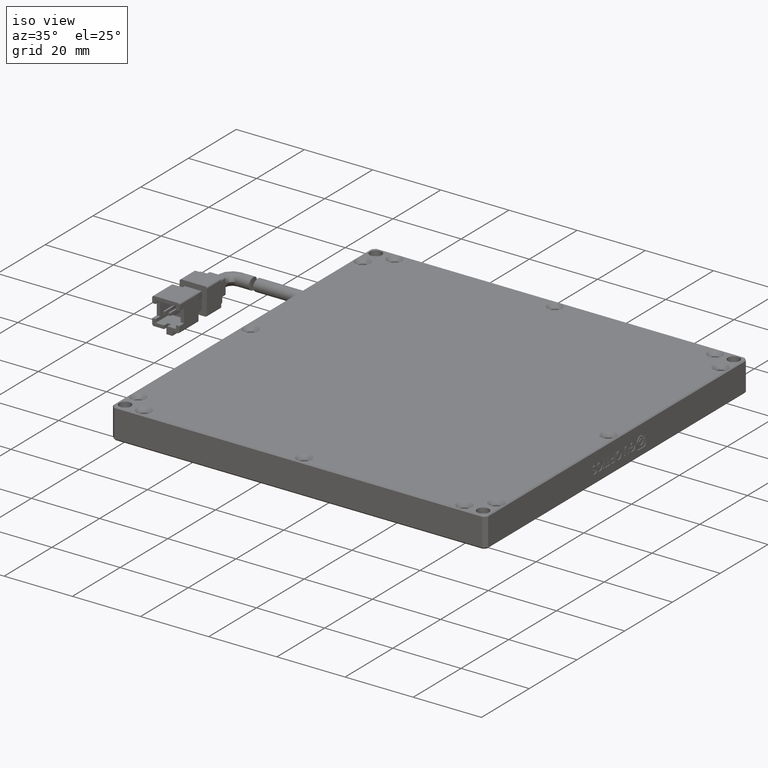
[diagram: clean part render]
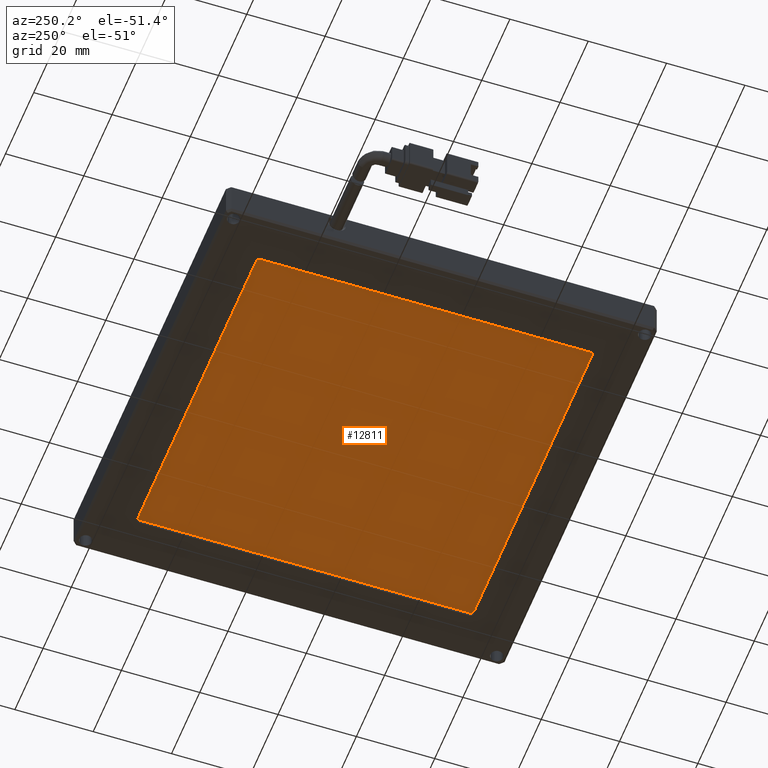
[diagram: tour spotlight — one face highlighted and labeled with its STEP entity id]
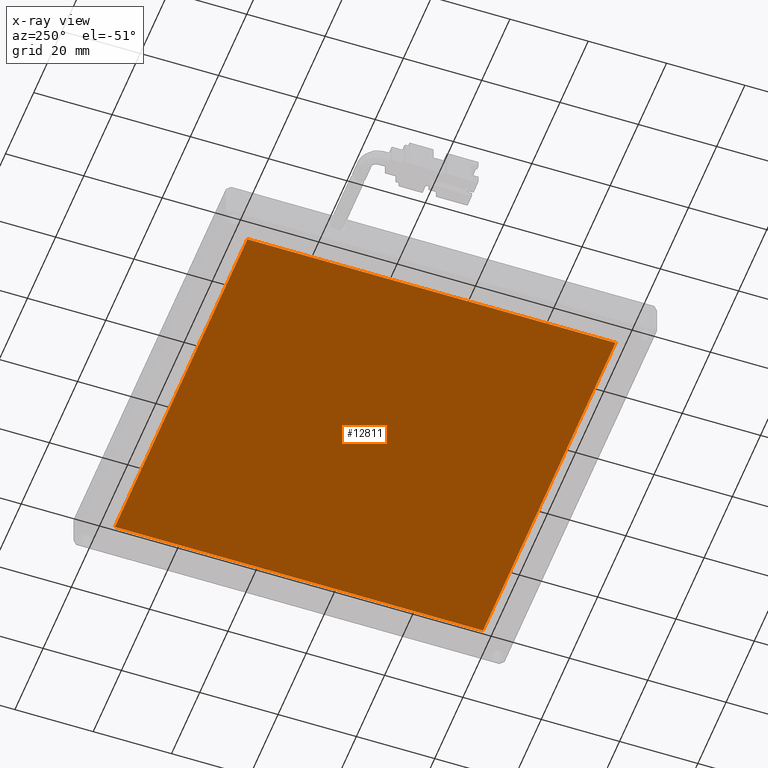
[diagram: x-ray of the same camera — body ghosted, this tour face saturated]
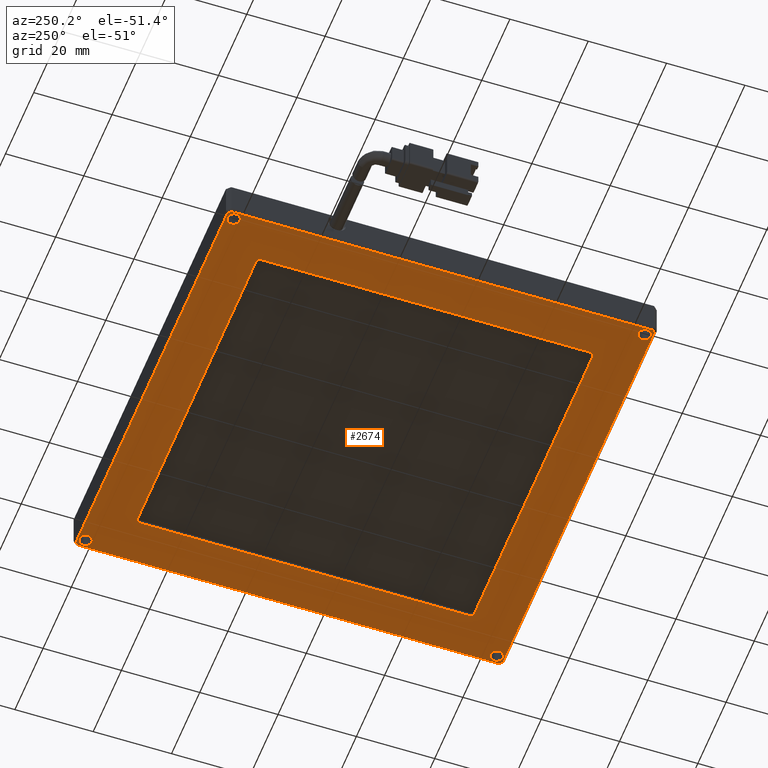
[diagram: tour spotlight — one face highlighted and labeled with its STEP entity id]
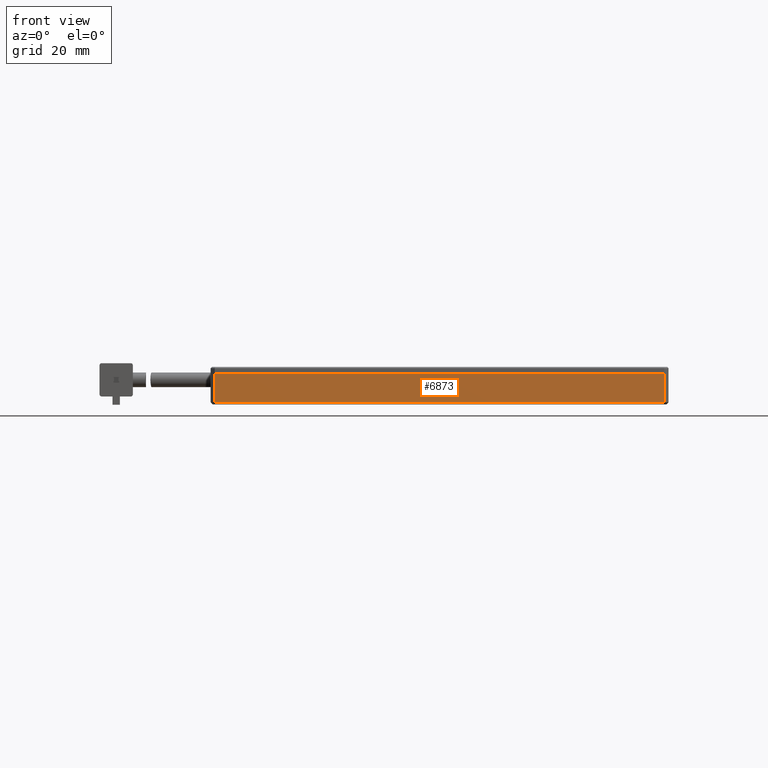
[diagram: tour spotlight — one face highlighted and labeled with its STEP entity id]
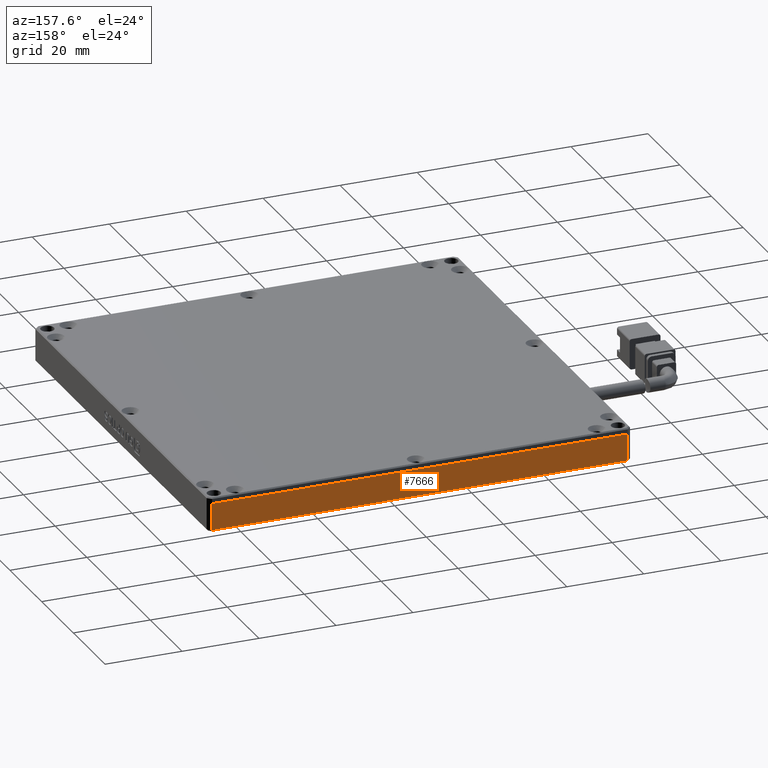
[diagram: tour spotlight — one face highlighted and labeled with its STEP entity id]
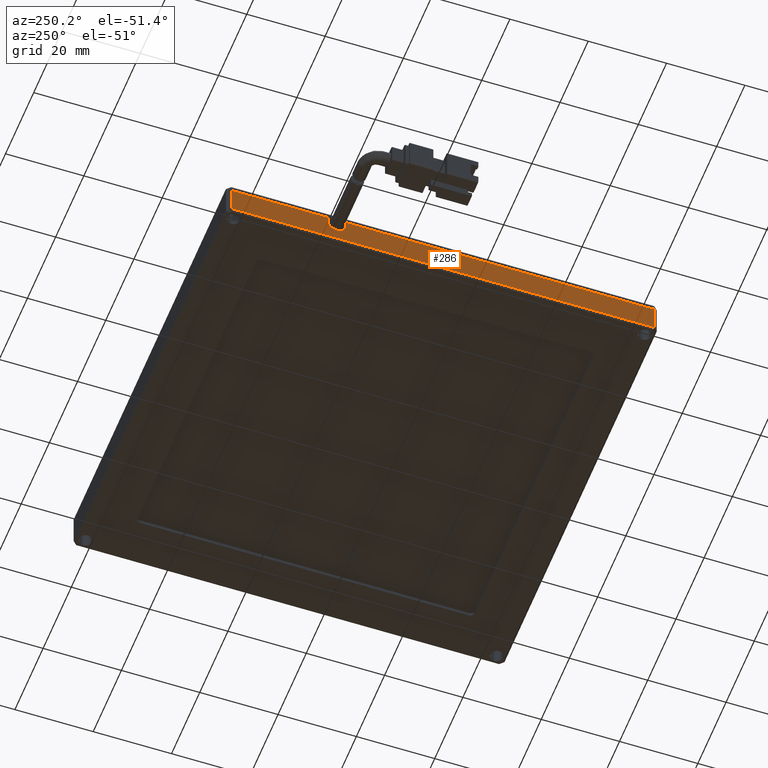
[diagram: tour spotlight — one face highlighted and labeled with its STEP entity id]
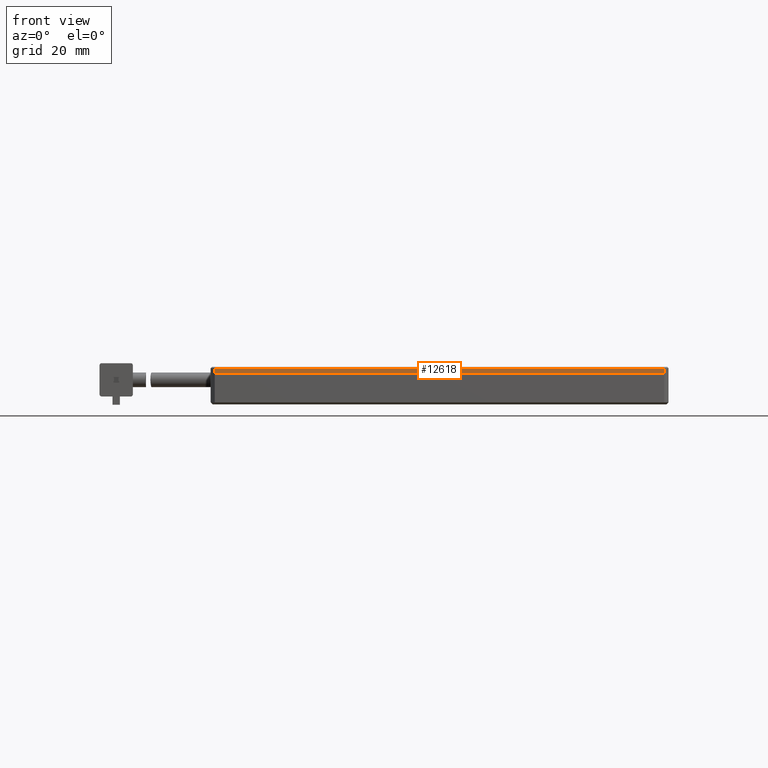
[diagram: tour spotlight — one face highlighted and labeled with its STEP entity id]
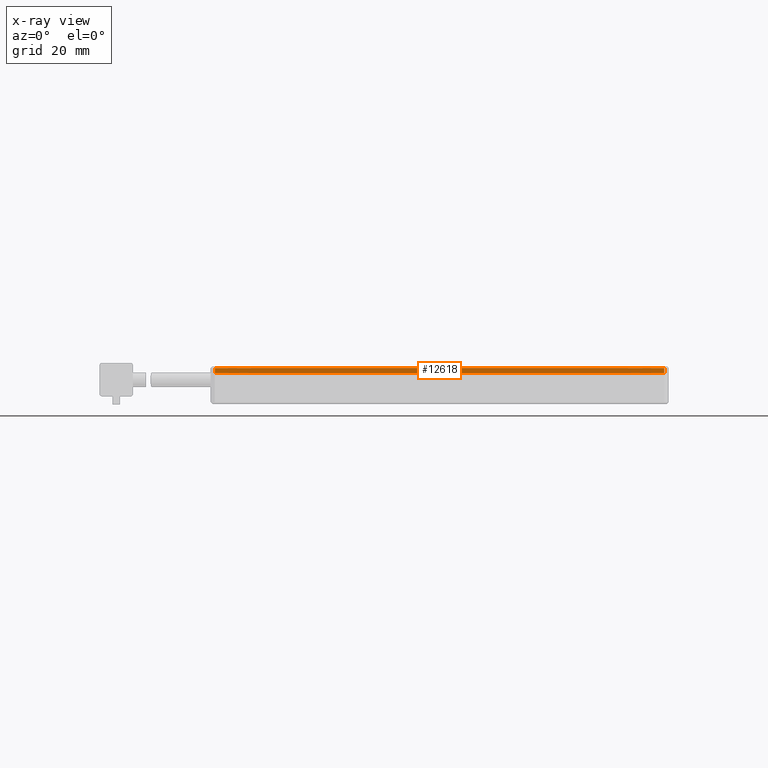
[diagram: x-ray of the same camera — body ghosted, this tour face saturated]
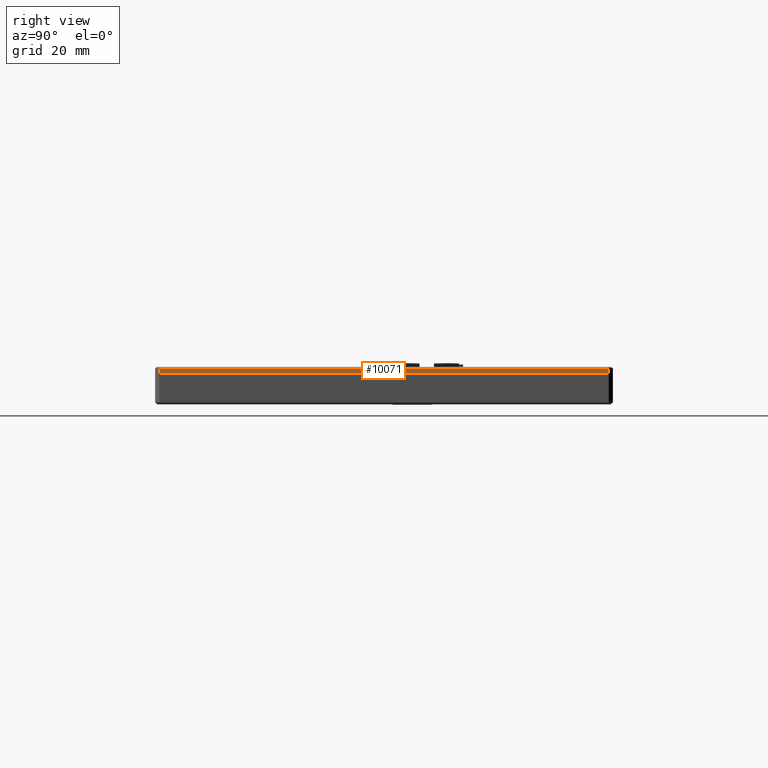
[diagram: tour spotlight — one face highlighted and labeled with its STEP entity id]
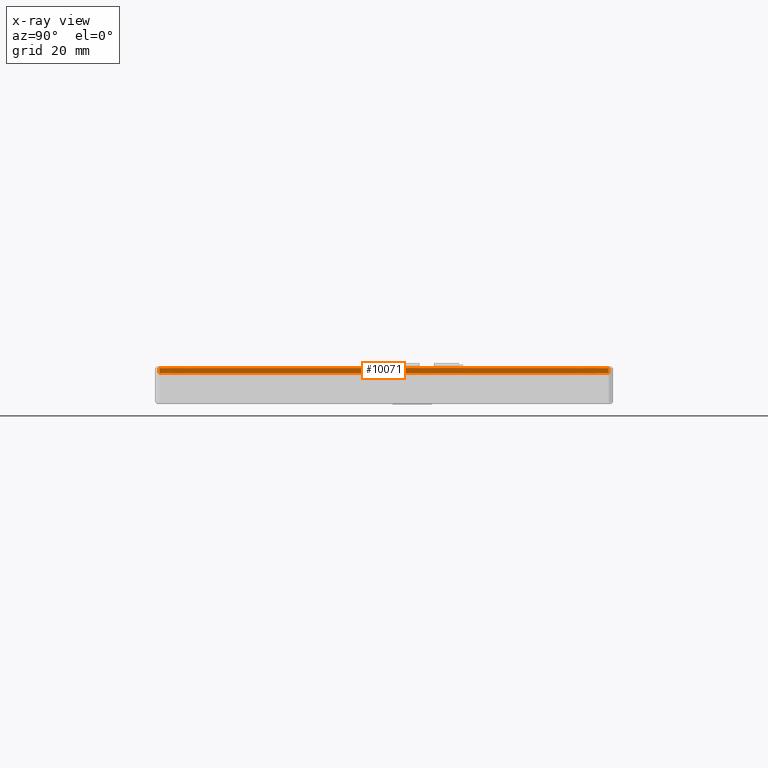
[diagram: x-ray of the same camera — body ghosted, this tour face saturated]
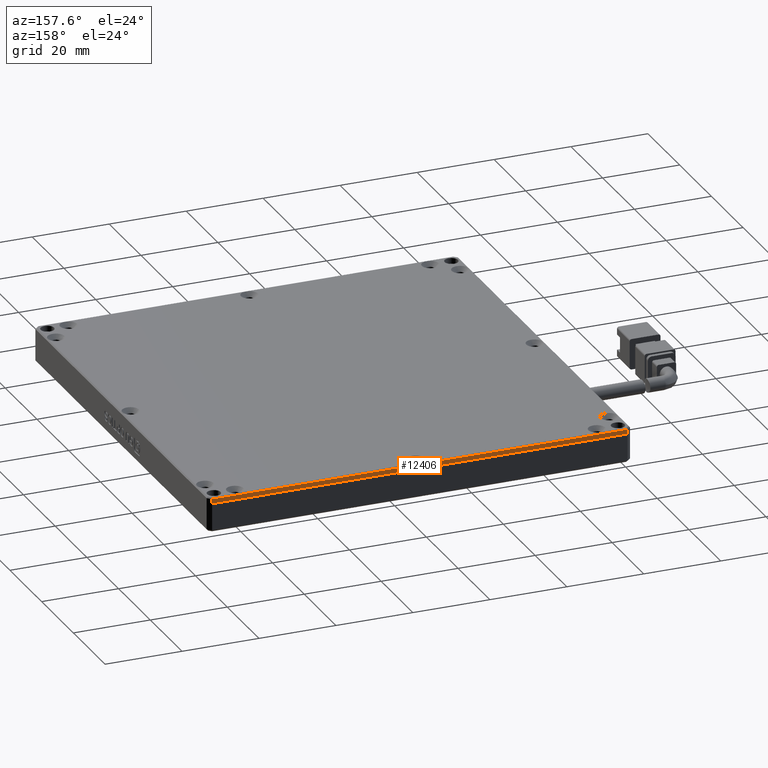
[diagram: tour spotlight — one face highlighted and labeled with its STEP entity id]
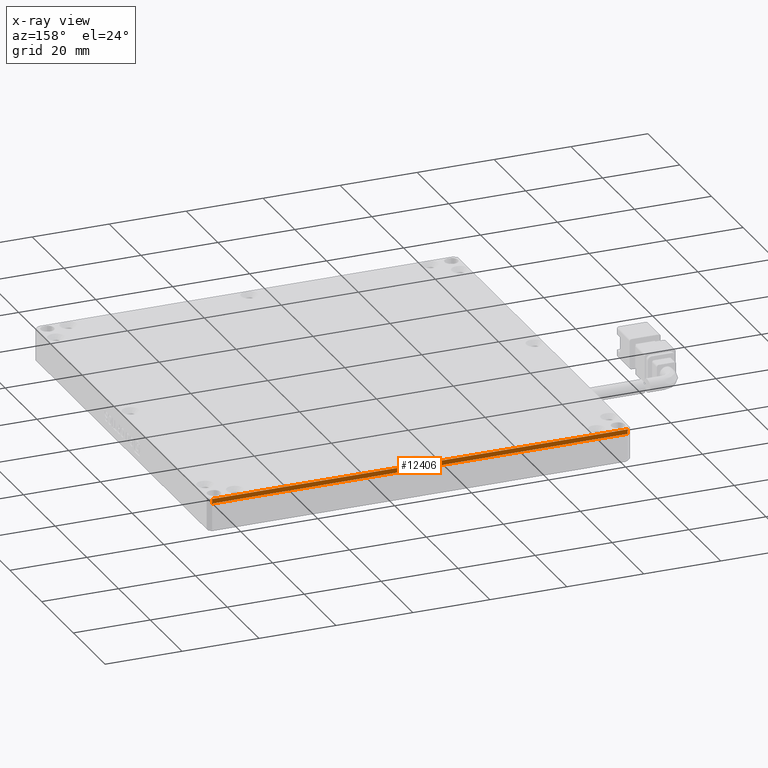
[diagram: x-ray of the same camera — body ghosted, this tour face saturated]
A machine part: a face-by-face anatomy tour. The part has 415 B-rep faces; the first image is the clean iso view, then the 8 largest visible faces are spotlighted one at a time (largest first), each with its STEP entity span.

Face 1 — auxiliary view, entity #12811. An x-ray twin of the same camera follows (body ghosted, this face saturated) — the face is partly hidden behind the body. In plain terms, the highlighted planar face has unit normal (0, 0, -1).
Definition (entity closure, byte-faithful):
#11 = ORIENTED_EDGE ( 'NONE', *, *, #4930, .T. ) ;
#364 = LINE ( 'NONE', #5172, #10865 ) ;
#570 = EDGE_CURVE ( 'NONE', #2853, #6898, #4342, .T. ) ;
#688 = ORIENTED_EDGE ( 'NONE', *, *, #15110, .T. ) ;
#860 = EDGE_LOOP ( 'NONE', ( #688, #10959, #11, #8814 ) ) ;
#1325 = DIRECTION ( 'NONE',  ( -0.0000000000000000000, -1.000000000000000000, -0.0000000000000000000 ) ) ;
#2226 = CARTESIAN_POINT ( 'NONE',  ( 41.85490645284001200, 55.40015273004998900, -6.500000000024000400 ) ) ;
#2301 = LINE ( 'NONE', #8918, #7849 ) ;
#2853 = VERTEX_POINT ( 'NONE', #6800 ) ;
#3536 = CARTESIAN_POINT ( 'NONE',  ( -52.14509354716000200, -38.59984726994999000, -6.500000000024000400 ) ) ;
#3910 = VECTOR ( 'NONE', #1325, 1000.000000000000000 ) ;
#4342 = LINE ( 'NONE', #9376, #14469 ) ;
#4930 = EDGE_CURVE ( 'NONE', #6898, #12902, #364, .T. ) ;
#5172 = CARTESIAN_POINT ( 'NONE',  ( -52.14509354715999500, 8.400152730050004700, -6.500000000024000400 ) ) ;
#6077 = DIRECTION ( 'NONE',  ( 0.0000000000000000000, 0.0000000000000000000, -1.000000000000000000 ) ) ;
#6800 = CARTESIAN_POINT ( 'NONE',  ( 41.85490645284000500, -38.59984726994998300, -6.500000000024000400 ) ) ;
#6898 = VERTEX_POINT ( 'NONE', #3536 ) ;
#7472 = DIRECTION ( 'NONE',  ( 1.000000000000000000, 0.0000000000000000000, 0.0000000000000000000 ) ) ;
#7517 = LINE ( 'NONE', #17869, #3910 ) ;
#7670 = CARTESIAN_POINT ( 'NONE',  ( -52.14509354716000900, 55.40015273004998900, -6.500000000024000400 ) ) ;
#7849 = VECTOR ( 'NONE', #7472, 1000.000000000000000 ) ;
#7905 = FACE_OUTER_BOUND ( 'NONE', #860, .T. ) ;
#8814 = ORIENTED_EDGE ( 'NONE', *, *, #13443, .T. ) ;
#8918 = CARTESIAN_POINT ( 'NONE',  ( -5.145093547160001000, 55.40015273004998200, -6.500000000024000400 ) ) ;
#9376 = CARTESIAN_POINT ( 'NONE',  ( -5.145093547160001000, -38.59984726994997600, -6.500000000024001200 ) ) ;
#10865 = VECTOR ( 'NONE', #13366, 1000.000000000000000 ) ;
#10959 = ORIENTED_EDGE ( 'NONE', *, *, #570, .T. ) ;
#11565 = VERTEX_POINT ( 'NONE', #2226 ) ;
#12811 = ADVANCED_FACE ( 'NONE', ( #7905 ), #12835, .T. ) ;
#12835 = PLANE ( 'NONE',  #17630 ) ;
#12902 = VERTEX_POINT ( 'NONE', #7670 ) ;
#13366 = DIRECTION ( 'NONE',  ( 0.0000000000000000000, 1.000000000000000000, 0.0000000000000000000 ) ) ;
#13443 = EDGE_CURVE ( 'NONE', #12902, #11565, #2301, .T. ) ;
#13829 = DIRECTION ( 'NONE',  ( -1.000000000000000000, 0.0000000000000000000, 0.0000000000000000000 ) ) ;
#14359 = CARTESIAN_POINT ( 'NONE',  ( 43.73490645284000800, -40.47984726994997800, -6.500000000024000400 ) ) ;
#14469 = VECTOR ( 'NONE', #13829, 1000.000000000000000 ) ;
#15110 = EDGE_CURVE ( 'NONE', #11565, #2853, #7517, .T. ) ;
#15775 = DIRECTION ( 'NONE',  ( -1.000000000000000000, 0.0000000000000000000, 0.0000000000000000000 ) ) ;
#17630 = AXIS2_PLACEMENT_3D ( 'NONE', #14359, #6077, #15775 ) ;
#17869 = CARTESIAN_POINT ( 'NONE',  ( 41.85490645283999800, 8.400152730050004700, -6.500000000024000400 ) ) ;

Face 2 — auxiliary view, entity #2674. In plain terms, the highlighted planar face has unit normal (0, 0, -1).
Definition (entity closure, byte-faithful):
#52 = AXIS2_PLACEMENT_3D ( 'NONE', #15049, #16231, #6558 ) ;
#247 = DIRECTION ( 'NONE',  ( -0.0000000000000000000, -0.0000000000000000000, -1.000000000000000000 ) ) ;
#267 = AXIS2_PLACEMENT_3D ( 'NONE', #8009, #17756, #9381 ) ;
#300 = DIRECTION ( 'NONE',  ( 0.7071067811865405800, 0.7071067811865544600, 0.0000000000000000000 ) ) ;
#627 = FACE_BOUND ( 'NONE', #4553, .T. ) ;
#639 = LINE ( 'NONE', #6534, #7898 ) ;
#697 = CARTESIAN_POINT ( 'NONE',  ( -58.93798676597328500, -46.09984726994931500, -7.500000000023733000 ) ) ;
#764 = DIRECTION ( 'NONE',  ( -1.000000000000000000, 0.0000000000000000000, 0.0000000000000000000 ) ) ;
#848 = CARTESIAN_POINT ( 'NONE',  ( 45.75490645284001800, 60.90015273004998200, -7.500000000023841400 ) ) ;
#911 = EDGE_CURVE ( 'NONE', #5100, #17538, #6434, .T. ) ;
#929 = ORIENTED_EDGE ( 'NONE', *, *, #4709, .T. ) ;
#957 = CARTESIAN_POINT ( 'NONE',  ( 37.85490645284001200, -33.59984726995010400, -7.500000000023823600 ) ) ;
#1000 = ORIENTED_EDGE ( 'NONE', *, *, #4232, .F. ) ;
#1040 = DIRECTION ( 'NONE',  ( 1.000000000000000000, 0.0000000000000000000, 0.0000000000000000000 ) ) ;
#1133 = EDGE_CURVE ( 'NONE', #10619, #7294, #17193, .T. ) ;
#1227 = VERTEX_POINT ( 'NONE', #848 ) ;
#1261 = LINE ( 'NONE', #7835, #4472 ) ;
#1458 = CARTESIAN_POINT ( 'NONE',  ( -47.14509354715999500, -33.59984726995000400, -7.500000000023782800 ) ) ;
#1485 = EDGE_LOOP ( 'NONE', ( #1988, #13790, #13715, #10527, #4000, #10057, #12462, #929 ) ) ;
#1682 = LINE ( 'NONE', #9803, #15495 ) ;
#1686 = CARTESIAN_POINT ( 'NONE',  ( 48.95490645284000000, 60.90015273004998200, -7.500000000023841400 ) ) ;
#1730 = ORIENTED_EDGE ( 'NONE', *, *, #13216, .F. ) ;
#1988 = ORIENTED_EDGE ( 'NONE', *, *, #911, .T. ) ;
#2014 = VECTOR ( 'NONE', #764, 1000.000000000000000 ) ;
#2030 = EDGE_CURVE ( 'NONE', #7294, #5217, #2202, .T. ) ;
#2202 = LINE ( 'NONE', #15770, #9032 ) ;
#2468 = VERTEX_POINT ( 'NONE', #15519 ) ;
#2499 = ORIENTED_EDGE ( 'NONE', *, *, #1133, .F. ) ;
#2531 = FACE_OUTER_BOUND ( 'NONE', #1485, .T. ) ;
#2544 = VERTEX_POINT ( 'NONE', #17143 ) ;
#2674 = ADVANCED_FACE ( 'NONE', ( #17246, #13529, #627, #4263, #6177, #2531 ), #13288, .T. ) ;
#2677 = EDGE_CURVE ( 'NONE', #17387, #11030, #11785, .T. ) ;
#2680 = EDGE_CURVE ( 'NONE', #9936, #3220, #1261, .T. ) ;
#2696 = AXIS2_PLACEMENT_3D ( 'NONE', #2895, #12511, #4281 ) ;
#2701 = CIRCLE ( 'NONE', #8368, 0.9999999999999870100 ) ;
#2760 = VECTOR ( 'NONE', #14850, 1000.000000000000000 ) ;
#2783 = CARTESIAN_POINT ( 'NONE',  ( 48.64779967164027900, -46.09984726994930800, -7.500000000023733900 ) ) ;
#2826 = DIRECTION ( 'NONE',  ( -1.000000000000000000, 0.0000000000000000000, 0.0000000000000000000 ) ) ;
#2895 = CARTESIAN_POINT ( 'NONE',  ( 47.35490645284001200, -44.09984726994999000, -7.500000000023841400 ) ) ;
#2910 = EDGE_LOOP ( 'NONE', ( #1000, #7886, #4386, #4583, #6382, #15029, #3883, #2499 ) ) ;
#2950 = CIRCLE ( 'NONE', #13745, 1.599999999999990300 ) ;
#3098 = AXIS2_PLACEMENT_3D ( 'NONE', #12746, #4502, #14142 ) ;
#3119 = DIRECTION ( 'NONE',  ( -0.0000000000000000000, 0.0000000000000000000, -1.000000000000000000 ) ) ;
#3220 = VERTEX_POINT ( 'NONE', #7618 ) ;
#3224 = EDGE_LOOP ( 'NONE', ( #3888, #17369 ) ) ;
#3300 = CARTESIAN_POINT ( 'NONE',  ( -48.14509354715998100, -33.59984726994999700, -7.500000000023823600 ) ) ;
#3373 = VECTOR ( 'NONE', #15447, 1000.000000000000000 ) ;
#3383 = CARTESIAN_POINT ( 'NONE',  ( -5.145093547159997400, -46.09984726994996200, -7.500000000023999500 ) ) ;
#3581 = CARTESIAN_POINT ( 'NONE',  ( -59.24509354715998200, -44.09984726994999000, -7.500000000023841400 ) ) ;
#3720 = DIRECTION ( 'NONE',  ( 0.0000000000000000000, 0.0000000000000000000, -1.000000000000000000 ) ) ;
#3847 = CARTESIAN_POINT ( 'NONE',  ( -59.24509354715998200, 60.90015273004998200, -7.500000000023841400 ) ) ;
#3883 = ORIENTED_EDGE ( 'NONE', *, *, #2030, .F. ) ;
#3884 = LINE ( 'NONE', #12793, #10306 ) ;
#3888 = ORIENTED_EDGE ( 'NONE', *, *, #12189, .F. ) ;
#4000 = ORIENTED_EDGE ( 'NONE', *, *, #11943, .T. ) ;
#4036 = CARTESIAN_POINT ( 'NONE',  ( 49.35490645284068700, 62.19304594885579000, -7.500000000024686900 ) ) ;
#4045 = ORIENTED_EDGE ( 'NONE', *, *, #2677, .F. ) ;
#4232 = EDGE_CURVE ( 'NONE', #2544, #10619, #639, .T. ) ;
#4256 = DIRECTION ( 'NONE',  ( -0.0000000000000000000, 0.0000000000000000000, -1.000000000000000000 ) ) ;
#4263 = FACE_BOUND ( 'NONE', #10939, .T. ) ;
#4281 = DIRECTION ( 'NONE',  ( 1.000000000000000000, 0.0000000000000000000, 0.0000000000000000000 ) ) ;
#4386 = ORIENTED_EDGE ( 'NONE', *, *, #7480, .F. ) ;
#4472 = VECTOR ( 'NONE', #14768, 1000.000000000000000 ) ;
#4502 = DIRECTION ( 'NONE',  ( 0.0000000000000000000, 0.0000000000000000000, -1.000000000000000000 ) ) ;
#4553 = EDGE_LOOP ( 'NONE', ( #14742, #8793 ) ) ;
#4583 = ORIENTED_EDGE ( 'NONE', *, *, #10976, .F. ) ;
#4709 = EDGE_CURVE ( 'NONE', #16093, #5100, #17007, .T. ) ;
#4760 = CARTESIAN_POINT ( 'NONE',  ( -56.04509354716000000, -44.09984726994999000, -7.500000000023841400 ) ) ;
#4811 = VERTEX_POINT ( 'NONE', #6300 ) ;
#5100 = VERTEX_POINT ( 'NONE', #8206 ) ;
#5188 = CARTESIAN_POINT ( 'NONE',  ( 49.35490645283999100, -45.39274048874995800, -7.500000000024000400 ) ) ;
#5217 = VERTEX_POINT ( 'NONE', #8721 ) ;
#5381 = DIRECTION ( 'NONE',  ( -0.0000000000000000000, 0.0000000000000000000, -1.000000000000000000 ) ) ;
#5406 = CARTESIAN_POINT ( 'NONE',  ( 36.85490645283999100, -34.59984726994999700, -7.500000000023823600 ) ) ;
#5917 = DIRECTION ( 'NONE',  ( -0.0000000000000000000, -1.000000000000000000, -0.0000000000000000000 ) ) ;
#6012 = VERTEX_POINT ( 'NONE', #4036 ) ;
#6024 = VERTEX_POINT ( 'NONE', #2783 ) ;
#6033 = CARTESIAN_POINT ( 'NONE',  ( 48.64779967163998700, 62.90015273004999600, -7.500000000024000400 ) ) ;
#6088 = DIRECTION ( 'NONE',  ( 0.7071067811930528100, -0.7071067811800423300, 0.0000000000000000000 ) ) ;
#6177 = FACE_BOUND ( 'NONE', #3224, .T. ) ;
#6300 = CARTESIAN_POINT ( 'NONE',  ( -47.14509354715993800, 51.40015273004998200, -7.500000000023823600 ) ) ;
#6382 = ORIENTED_EDGE ( 'NONE', *, *, #2680, .F. ) ;
#6434 = LINE ( 'NONE', #10502, #17512 ) ;
#6534 = CARTESIAN_POINT ( 'NONE',  ( 37.85490645284001200, 8.400152730049997600, -7.500000000023864500 ) ) ;
#6558 = DIRECTION ( 'NONE',  ( -1.000000000000000000, 0.0000000000000000000, 0.0000000000000000000 ) ) ;
#6720 = EDGE_CURVE ( 'NONE', #17677, #2544, #10079, .T. ) ;
#6889 = CARTESIAN_POINT ( 'NONE',  ( -57.64509354715999500, -44.09984726994999000, -7.500000000023841400 ) ) ;
#7101 = CARTESIAN_POINT ( 'NONE',  ( -5.145093547159997400, 51.40015273004998200, -7.500000000023864500 ) ) ;
#7294 = VERTEX_POINT ( 'NONE', #5406 ) ;
#7386 = EDGE_CURVE ( 'NONE', #5217, #9936, #14604, .T. ) ;
#7423 = VERTEX_POINT ( 'NONE', #9698 ) ;
#7480 = EDGE_CURVE ( 'NONE', #4811, #17677, #17657, .T. ) ;
#7492 = DIRECTION ( 'NONE',  ( -1.000000000000000000, -0.0000000000000000000, -0.0000000000000000000 ) ) ;
#7508 = EDGE_CURVE ( 'NONE', #8931, #8220, #2950, .T. ) ;
#7605 = CARTESIAN_POINT ( 'NONE',  ( -47.14509354715999500, 50.40015273004998200, -7.500000000023782800 ) ) ;
#7618 = CARTESIAN_POINT ( 'NONE',  ( -48.14509354715998100, 50.40015273004998200, -7.500000000023823600 ) ) ;
#7835 = CARTESIAN_POINT ( 'NONE',  ( -48.14509354715998100, 8.400152730049997600, -7.500000000023864500 ) ) ;
#7886 = ORIENTED_EDGE ( 'NONE', *, *, #6720, .F. ) ;
#7889 = EDGE_CURVE ( 'NONE', #8220, #8931, #16982, .T. ) ;
#7898 = VECTOR ( 'NONE', #17647, 1000.000000000000000 ) ;
#8009 = CARTESIAN_POINT ( 'NONE',  ( 47.35490645284001200, 60.90015273004998200, -7.500000000023841400 ) ) ;
#8041 = DIRECTION ( 'NONE',  ( 0.0000000000000000000, 1.000000000000000000, 0.0000000000000000000 ) ) ;
#8142 = EDGE_LOOP ( 'NONE', ( #4045, #1730 ) ) ;
#8206 = CARTESIAN_POINT ( 'NONE',  ( -59.64509354715942600, -45.39274048875680000, -7.500000000023437300 ) ) ;
#8220 = VERTEX_POINT ( 'NONE', #10279 ) ;
#8278 = DIRECTION ( 'NONE',  ( 1.000000000000000000, 0.0000000000000000000, 0.0000000000000000000 ) ) ;
#8368 = AXIS2_PLACEMENT_3D ( 'NONE', #7605, #17355, #8989 ) ;
#8414 = CARTESIAN_POINT ( 'NONE',  ( 47.35490645284001200, 60.90015273004998200, -7.500000000023841400 ) ) ;
#8721 = CARTESIAN_POINT ( 'NONE',  ( -47.14509354716015100, -34.59984726994999700, -7.500000000023823600 ) ) ;
#8734 = CIRCLE ( 'NONE', #9774, 1.599999999999990300 ) ;
#8778 = VERTEX_POINT ( 'NONE', #17279 ) ;
#8793 = ORIENTED_EDGE ( 'NONE', *, *, #15792, .F. ) ;
#8813 = CARTESIAN_POINT ( 'NONE',  ( -58.93798676597300800, -46.09984726994996900, -7.500000000024000400 ) ) ;
#8893 = CARTESIAN_POINT ( 'NONE',  ( -5.145093547159997400, 62.90015273004998200, -7.500000000023999500 ) ) ;
#8931 = VERTEX_POINT ( 'NONE', #3847 ) ;
#8989 = DIRECTION ( 'NONE',  ( -1.000000000000000000, 0.0000000000000000000, 0.0000000000000000000 ) ) ;
#9032 = VECTOR ( 'NONE', #7492, 1000.000000000000000 ) ;
#9204 = DIRECTION ( 'NONE',  ( -0.0000000000000000000, -0.0000000000000000000, -1.000000000000000000 ) ) ;
#9270 = AXIS2_PLACEMENT_3D ( 'NONE', #17568, #9204, #1040 ) ;
#9381 = DIRECTION ( 'NONE',  ( 1.000000000000000000, 0.0000000000000000000, 0.0000000000000000000 ) ) ;
#9584 = VECTOR ( 'NONE', #10198, 1000.000000000000100 ) ;
#9607 = LINE ( 'NONE', #5188, #2760 ) ;
#9698 = CARTESIAN_POINT ( 'NONE',  ( -58.93798676597329900, 62.90015273004932800, -7.500000000023732100 ) ) ;
#9774 = AXIS2_PLACEMENT_3D ( 'NONE', #6889, #16638, #8278 ) ;
#9803 = CARTESIAN_POINT ( 'NONE',  ( -59.64509354715999500, 62.19304594886298800, -7.500000000024000400 ) ) ;
#9811 = DIRECTION ( 'NONE',  ( 1.000000000000000000, 0.0000000000000000000, 0.0000000000000000000 ) ) ;
#9835 = CARTESIAN_POINT ( 'NONE',  ( -59.64509354715941900, 62.19304594885682700, -7.500000000023438100 ) ) ;
#9936 = VERTEX_POINT ( 'NONE', #3300 ) ;
#10057 = ORIENTED_EDGE ( 'NONE', *, *, #13013, .T. ) ;
#10079 = CIRCLE ( 'NONE', #3098, 1.000000000000000900 ) ;
#10190 = VECTOR ( 'NONE', #11705, 1000.000000000000000 ) ;
#10198 = DIRECTION ( 'NONE',  ( -0.7071067811800353400, 0.7071067811930597000, 0.0000000000000000000 ) ) ;
#10205 = AXIS2_PLACEMENT_3D ( 'NONE', #11956, #3720, #13356 ) ;
#10279 = CARTESIAN_POINT ( 'NONE',  ( -56.04509354716000000, 60.90015273004998200, -7.500000000023841400 ) ) ;
#10306 = VECTOR ( 'NONE', #5917, 1000.000000000000000 ) ;
#10409 = EDGE_CURVE ( 'NONE', #17538, #7423, #1682, .T. ) ;
#10502 = CARTESIAN_POINT ( 'NONE',  ( -59.64509354715998100, 8.400152730050011800, -7.500000000023999500 ) ) ;
#10527 = ORIENTED_EDGE ( 'NONE', *, *, #12050, .T. ) ;
#10619 = VERTEX_POINT ( 'NONE', #957 ) ;
#10939 = EDGE_LOOP ( 'NONE', ( #15988, #14022 ) ) ;
#10976 = EDGE_CURVE ( 'NONE', #3220, #4811, #2701, .T. ) ;
#11029 = DIRECTION ( 'NONE',  ( 0.0000000000000000000, 0.0000000000000000000, -1.000000000000000000 ) ) ;
#11030 = VERTEX_POINT ( 'NONE', #16092 ) ;
#11337 = CARTESIAN_POINT ( 'NONE',  ( -57.64509354715999500, 60.90015273004998200, -7.500000000023841400 ) ) ;
#11688 = EDGE_CURVE ( 'NONE', #1227, #12230, #15633, .T. ) ;
#11705 = DIRECTION ( 'NONE',  ( 1.000000000000000000, -0.0000000000000000000, -0.0000000000000000000 ) ) ;
#11785 = CIRCLE ( 'NONE', #9270, 1.599999999999990300 ) ;
#11835 = LINE ( 'NONE', #6033, #15556 ) ;
#11943 = EDGE_CURVE ( 'NONE', #6012, #8778, #3884, .T. ) ;
#11956 = CARTESIAN_POINT ( 'NONE',  ( 51.53490645284000500, -48.27984726994998300, -7.500000000024000400 ) ) ;
#12050 = EDGE_CURVE ( 'NONE', #2468, #6012, #11835, .T. ) ;
#12161 = EDGE_CURVE ( 'NONE', #16047, #15561, #16206, .T. ) ;
#12189 = EDGE_CURVE ( 'NONE', #12230, #1227, #15750, .T. ) ;
#12230 = VERTEX_POINT ( 'NONE', #1686 ) ;
#12339 = CARTESIAN_POINT ( 'NONE',  ( 48.95490645284000000, -44.09984726994999000, -7.500000000023841400 ) ) ;
#12461 = AXIS2_PLACEMENT_3D ( 'NONE', #12485, #4256, #13891 ) ;
#12462 = ORIENTED_EDGE ( 'NONE', *, *, #14709, .T. ) ;
#12485 = CARTESIAN_POINT ( 'NONE',  ( -57.64509354715999500, -44.09984726994999000, -7.500000000023841400 ) ) ;
#12511 = DIRECTION ( 'NONE',  ( -0.0000000000000000000, -0.0000000000000000000, -1.000000000000000000 ) ) ;
#12746 = CARTESIAN_POINT ( 'NONE',  ( 36.85490645283999800, 50.40015273004998200, -7.500000000023782800 ) ) ;
#12748 = DIRECTION ( 'NONE',  ( 1.000000000000000000, 0.0000000000000000000, 0.0000000000000000000 ) ) ;
#12793 = CARTESIAN_POINT ( 'NONE',  ( 49.35490645283999100, 8.400152730050011800, -7.500000000023999500 ) ) ;
#13013 = EDGE_CURVE ( 'NONE', #8778, #6024, #9607, .T. ) ;
#13216 = EDGE_CURVE ( 'NONE', #11030, #17387, #15704, .T. ) ;
#13288 = PLANE ( 'NONE',  #10205 ) ;
#13356 = DIRECTION ( 'NONE',  ( -1.000000000000000000, 0.0000000000000000000, 0.0000000000000000000 ) ) ;
#13403 = AXIS2_PLACEMENT_3D ( 'NONE', #8414, #247, #9811 ) ;
#13529 = FACE_BOUND ( 'NONE', #8142, .T. ) ;
#13651 = CARTESIAN_POINT ( 'NONE',  ( -57.64509354715999500, 60.90015273004998200, -7.500000000023841400 ) ) ;
#13715 = ORIENTED_EDGE ( 'NONE', *, *, #14056, .T. ) ;
#13745 = AXIS2_PLACEMENT_3D ( 'NONE', #11337, #3119, #12748 ) ;
#13790 = ORIENTED_EDGE ( 'NONE', *, *, #10409, .T. ) ;
#13891 = DIRECTION ( 'NONE',  ( 1.000000000000000000, 0.0000000000000000000, 0.0000000000000000000 ) ) ;
#14022 = ORIENTED_EDGE ( 'NONE', *, *, #7508, .F. ) ;
#14056 = EDGE_CURVE ( 'NONE', #7423, #2468, #17175, .T. ) ;
#14142 = DIRECTION ( 'NONE',  ( -1.000000000000000000, 0.0000000000000000000, 0.0000000000000000000 ) ) ;
#14461 = CARTESIAN_POINT ( 'NONE',  ( 36.85490645284004800, 51.40015273004998200, -7.500000000023823600 ) ) ;
#14604 = CIRCLE ( 'NONE', #17831, 0.9999999999999870100 ) ;
#14709 = EDGE_CURVE ( 'NONE', #6024, #16093, #16282, .T. ) ;
#14742 = ORIENTED_EDGE ( 'NONE', *, *, #12161, .F. ) ;
#14768 = DIRECTION ( 'NONE',  ( 0.0000000000000000000, 1.000000000000000000, 0.0000000000000000000 ) ) ;
#14850 = DIRECTION ( 'NONE',  ( -0.7071067811865441300, -0.7071067811865510100, 0.0000000000000000000 ) ) ;
#15029 = ORIENTED_EDGE ( 'NONE', *, *, #7386, .F. ) ;
#15049 = CARTESIAN_POINT ( 'NONE',  ( 36.85490645283999800, -33.59984726995000400, -7.500000000023782800 ) ) ;
#15054 = DIRECTION ( 'NONE',  ( 1.000000000000000000, 0.0000000000000000000, 0.0000000000000000000 ) ) ;
#15447 = DIRECTION ( 'NONE',  ( 1.000000000000000000, 0.0000000000000000000, 0.0000000000000000000 ) ) ;
#15495 = VECTOR ( 'NONE', #300, 1000.000000000000000 ) ;
#15519 = CARTESIAN_POINT ( 'NONE',  ( 48.64779967164026400, 62.90015273004934200, -7.500000000023728600 ) ) ;
#15556 = VECTOR ( 'NONE', #6088, 999.9999999999998900 ) ;
#15561 = VERTEX_POINT ( 'NONE', #3581 ) ;
#15633 = CIRCLE ( 'NONE', #267, 1.599999999999990300 ) ;
#15704 = CIRCLE ( 'NONE', #2696, 1.599999999999990300 ) ;
#15750 = CIRCLE ( 'NONE', #13403, 1.599999999999990300 ) ;
#15770 = CARTESIAN_POINT ( 'NONE',  ( -5.145093547159997400, -34.59984726994999700, -7.500000000023864500 ) ) ;
#15792 = EDGE_CURVE ( 'NONE', #15561, #16047, #8734, .T. ) ;
#15988 = ORIENTED_EDGE ( 'NONE', *, *, #7889, .F. ) ;
#16047 = VERTEX_POINT ( 'NONE', #4760 ) ;
#16092 = CARTESIAN_POINT ( 'NONE',  ( 45.75490645284001800, -44.09984726994999000, -7.500000000023841400 ) ) ;
#16093 = VERTEX_POINT ( 'NONE', #697 ) ;
#16206 = CIRCLE ( 'NONE', #12461, 1.599999999999990300 ) ;
#16231 = DIRECTION ( 'NONE',  ( 0.0000000000000000000, 0.0000000000000000000, -1.000000000000000000 ) ) ;
#16282 = LINE ( 'NONE', #3383, #2014 ) ;
#16638 = DIRECTION ( 'NONE',  ( -0.0000000000000000000, 0.0000000000000000000, -1.000000000000000000 ) ) ;
#16982 = CIRCLE ( 'NONE', #17724, 1.599999999999990300 ) ;
#17007 = LINE ( 'NONE', #8813, #9584 ) ;
#17143 = CARTESIAN_POINT ( 'NONE',  ( 37.85490645284001200, 50.40015273004999600, -7.500000000023823600 ) ) ;
#17175 = LINE ( 'NONE', #8893, #10190 ) ;
#17193 = CIRCLE ( 'NONE', #52, 1.000000000000000900 ) ;
#17246 = FACE_BOUND ( 'NONE', #2910, .T. ) ;
#17279 = CARTESIAN_POINT ( 'NONE',  ( 49.35490645284067300, -45.39274048875578400, -7.500000000024686900 ) ) ;
#17355 = DIRECTION ( 'NONE',  ( 0.0000000000000000000, 0.0000000000000000000, -1.000000000000000000 ) ) ;
#17369 = ORIENTED_EDGE ( 'NONE', *, *, #11688, .F. ) ;
#17387 = VERTEX_POINT ( 'NONE', #12339 ) ;
#17512 = VECTOR ( 'NONE', #8041, 1000.000000000000000 ) ;
#17538 = VERTEX_POINT ( 'NONE', #9835 ) ;
#17568 = CARTESIAN_POINT ( 'NONE',  ( 47.35490645284001200, -44.09984726994999000, -7.500000000023841400 ) ) ;
#17647 = DIRECTION ( 'NONE',  ( -0.0000000000000000000, -1.000000000000000000, -0.0000000000000000000 ) ) ;
#17657 = LINE ( 'NONE', #7101, #3373 ) ;
#17677 = VERTEX_POINT ( 'NONE', #14461 ) ;
#17724 = AXIS2_PLACEMENT_3D ( 'NONE', #13651, #5381, #15054 ) ;
#17756 = DIRECTION ( 'NONE',  ( -0.0000000000000000000, -0.0000000000000000000, -1.000000000000000000 ) ) ;
#17831 = AXIS2_PLACEMENT_3D ( 'NONE', #1458, #11029, #2826 ) ;

Face 3 — front view, entity #6873. In plain terms, the highlighted planar face has unit normal (0, 1, -0).
Definition (entity closure, byte-faithful):
#104 = VECTOR ( 'NONE', #8120, 1000.000000000000000 ) ;
#337 = VERTEX_POINT ( 'NONE', #1720 ) ;
#544 = LINE ( 'NONE', #6733, #104 ) ;
#792 = DIRECTION ( 'NONE',  ( -1.000000000000000000, 0.0000000000000000000, 0.0000000000000000000 ) ) ;
#1174 = CARTESIAN_POINT ( 'NONE',  ( -59.14509354716001600, -46.59984726994998300, -3.500000000023749400 ) ) ;
#1720 = CARTESIAN_POINT ( 'NONE',  ( 48.85490645284310300, -46.59984726995136800, -2.369265829534158100E-011 ) ) ;
#2756 = AXIS2_PLACEMENT_3D ( 'NONE', #17325, #8953, #792 ) ;
#3379 = CARTESIAN_POINT ( 'NONE',  ( -59.14509354715928400, -46.59984726995006100, -7.000000000024730400 ) ) ;
#4944 = EDGE_CURVE ( 'NONE', #11825, #10926, #9570, .T. ) ;
#5228 = DIRECTION ( 'NONE',  ( -1.000000000000000000, 0.0000000000000000000, 0.0000000000000000000 ) ) ;
#5301 = DIRECTION ( 'NONE',  ( 0.0000000000000000000, 0.0000000000000000000, 1.000000000000000000 ) ) ;
#5526 = LINE ( 'NONE', #8256, #12409 ) ;
#5568 = CARTESIAN_POINT ( 'NONE',  ( 48.85490645284423300, -46.59984726995021700, -7.000000000024218000 ) ) ;
#5639 = DIRECTION ( 'NONE',  ( -0.0000000000000000000, -0.0000000000000000000, -1.000000000000000000 ) ) ;
#6733 = CARTESIAN_POINT ( 'NONE',  ( -5.145093547159997400, -46.59984726994998300, -2.364686224609999500E-011 ) ) ;
#6873 = ADVANCED_FACE ( 'NONE', ( #12670 ), #11710, .F. ) ;
#7397 = EDGE_CURVE ( 'NONE', #337, #11825, #5526, .T. ) ;
#7596 = VECTOR ( 'NONE', #5301, 1000.000000000000000 ) ;
#8120 = DIRECTION ( 'NONE',  ( -1.000000000000000000, 0.0000000000000000000, 0.0000000000000000000 ) ) ;
#8256 = CARTESIAN_POINT ( 'NONE',  ( 48.85490645284002700, -46.59984726994998300, -3.500000000023749400 ) ) ;
#8424 = EDGE_CURVE ( 'NONE', #10926, #11870, #11286, .T. ) ;
#8953 = DIRECTION ( 'NONE',  ( 0.0000000000000000000, 1.000000000000000000, -0.0000000000000000000 ) ) ;
#9570 = LINE ( 'NONE', #14895, #12832 ) ;
#10827 = ORIENTED_EDGE ( 'NONE', *, *, #14297, .T. ) ;
#10926 = VERTEX_POINT ( 'NONE', #3379 ) ;
#11268 = CARTESIAN_POINT ( 'NONE',  ( -59.14509354715817600, -46.59984726995129700, -2.369244145490708400E-011 ) ) ;
#11286 = LINE ( 'NONE', #1174, #7596 ) ;
#11710 = PLANE ( 'NONE',  #2756 ) ;
#11825 = VERTEX_POINT ( 'NONE', #5568 ) ;
#11870 = VERTEX_POINT ( 'NONE', #11268 ) ;
#12409 = VECTOR ( 'NONE', #5639, 1000.000000000000000 ) ;
#12670 = FACE_OUTER_BOUND ( 'NONE', #12698, .T. ) ;
#12698 = EDGE_LOOP ( 'NONE', ( #14601, #10827, #17820, #13473 ) ) ;
#12832 = VECTOR ( 'NONE', #5228, 1000.000000000000000 ) ;
#13473 = ORIENTED_EDGE ( 'NONE', *, *, #4944, .F. ) ;
#14297 = EDGE_CURVE ( 'NONE', #337, #11870, #544, .T. ) ;
#14601 = ORIENTED_EDGE ( 'NONE', *, *, #7397, .F. ) ;
#14895 = CARTESIAN_POINT ( 'NONE',  ( -5.145093547159993900, -46.59984726994998300, -7.000000000023993300 ) ) ;
#17325 = CARTESIAN_POINT ( 'NONE',  ( 51.01490645284000900, -46.59984726994998300, -7.187088229858998600 ) ) ;
#17820 = ORIENTED_EDGE ( 'NONE', *, *, #8424, .F. ) ;

Face 4 — auxiliary view, entity #7666. In plain terms, the highlighted planar face has unit normal (0, -1, 0).
Definition (entity closure, byte-faithful):
#719 = VERTEX_POINT ( 'NONE', #16888 ) ;
#1166 = VECTOR ( 'NONE', #5617, 1000.000000000000000 ) ;
#1443 = LINE ( 'NONE', #7520, #8272 ) ;
#1520 = CARTESIAN_POINT ( 'NONE',  ( -59.14509354715809800, 63.40015273005136700, -2.369249566501570800E-011 ) ) ;
#1652 = LINE ( 'NONE', #5169, #8479 ) ;
#2348 = VERTEX_POINT ( 'NONE', #1520 ) ;
#2454 = CARTESIAN_POINT ( 'NONE',  ( 48.85490645284316700, 63.40015273005131000, -2.369244145490708400E-011 ) ) ;
#2465 = CARTESIAN_POINT ( 'NONE',  ( -5.145093547159993900, 63.40015273004998200, -7.000000000023993300 ) ) ;
#2588 = ORIENTED_EDGE ( 'NONE', *, *, #6496, .F. ) ;
#2887 = AXIS2_PLACEMENT_3D ( 'NONE', #13159, #4936, #14564 ) ;
#3422 = VERTEX_POINT ( 'NONE', #13942 ) ;
#4243 = CARTESIAN_POINT ( 'NONE',  ( -59.14509354716000200, 63.40015273004998200, -3.500000000023749000 ) ) ;
#4936 = DIRECTION ( 'NONE',  ( 0.0000000000000000000, -1.000000000000000000, 0.0000000000000000000 ) ) ;
#5169 = CARTESIAN_POINT ( 'NONE',  ( 48.85490645284002700, 63.40015273004998200, -3.500000000023749400 ) ) ;
#5617 = DIRECTION ( 'NONE',  ( -0.0000000000000000000, -0.0000000000000000000, -1.000000000000000000 ) ) ;
#5765 = ORIENTED_EDGE ( 'NONE', *, *, #7637, .T. ) ;
#6496 = EDGE_CURVE ( 'NONE', #719, #3422, #16440, .T. ) ;
#6521 = DIRECTION ( 'NONE',  ( 0.0000000000000000000, 0.0000000000000000000, 1.000000000000000000 ) ) ;
#7520 = CARTESIAN_POINT ( 'NONE',  ( -5.145093547160001000, 63.40015273004999600, -2.364686224609999500E-011 ) ) ;
#7576 = PLANE ( 'NONE',  #2887 ) ;
#7637 = EDGE_CURVE ( 'NONE', #2348, #11648, #1443, .T. ) ;
#7666 = ADVANCED_FACE ( 'NONE', ( #11966 ), #7576, .F. ) ;
#8272 = VECTOR ( 'NONE', #8844, 1000.000000000000000 ) ;
#8479 = VECTOR ( 'NONE', #6521, 1000.000000000000000 ) ;
#8638 = EDGE_LOOP ( 'NONE', ( #17251, #5765, #10118, #2588 ) ) ;
#8844 = DIRECTION ( 'NONE',  ( 1.000000000000000000, -0.0000000000000000000, -0.0000000000000000000 ) ) ;
#10118 = ORIENTED_EDGE ( 'NONE', *, *, #13585, .F. ) ;
#11648 = VERTEX_POINT ( 'NONE', #2454 ) ;
#11966 = FACE_OUTER_BOUND ( 'NONE', #8638, .T. ) ;
#12087 = DIRECTION ( 'NONE',  ( 1.000000000000000000, 0.0000000000000000000, 0.0000000000000000000 ) ) ;
#12285 = VECTOR ( 'NONE', #12087, 1000.000000000000000 ) ;
#13159 = CARTESIAN_POINT ( 'NONE',  ( -61.30509354716000600, 63.40015273004998200, -7.187088229858998600 ) ) ;
#13585 = EDGE_CURVE ( 'NONE', #3422, #11648, #1652, .T. ) ;
#13942 = CARTESIAN_POINT ( 'NONE',  ( 48.85490645284419000, 63.40015273005020200, -7.000000000024219700 ) ) ;
#14564 = DIRECTION ( 'NONE',  ( 1.000000000000000000, 0.0000000000000000000, 0.0000000000000000000 ) ) ;
#15413 = LINE ( 'NONE', #4243, #1166 ) ;
#16440 = LINE ( 'NONE', #2465, #12285 ) ;
#16888 = CARTESIAN_POINT ( 'NONE',  ( -59.14509354715928400, 63.40015273005006700, -7.000000000024736700 ) ) ;
#16933 = EDGE_CURVE ( 'NONE', #2348, #719, #15413, .T. ) ;
#17251 = ORIENTED_EDGE ( 'NONE', *, *, #16933, .F. ) ;

Face 5 — auxiliary view, entity #286. In plain terms, the highlighted planar face has unit normal (1, 0, 0).
Definition (entity closure, byte-faithful):
#286 = ADVANCED_FACE ( 'NONE', ( #12972 ), #13057, .F. ) ;
#299 = CARTESIAN_POINT ( 'NONE',  ( -60.14509354715977500, -45.59984726994603900, -7.000000000021207900 ) ) ;
#799 = CARTESIAN_POINT ( 'NONE',  ( -60.14509354715998100, -45.59984726994998300, -3.500000000023749000 ) ) ;
#872 = DIRECTION ( 'NONE',  ( 0.0000000000000000000, 0.0000000000000000000, 1.000000000000000000 ) ) ;
#894 = CARTESIAN_POINT ( 'NONE',  ( -60.14509354716000200, 8.400152730050001200, -2.364686224609999500E-011 ) ) ;
#1462 = EDGE_CURVE ( 'NONE', #11384, #8952, #12794, .T. ) ;
#1493 = VECTOR ( 'NONE', #17336, 1000.000000000000000 ) ;
#1572 = VECTOR ( 'NONE', #872, 1000.000000000000000 ) ;
#1915 = LINE ( 'NONE', #799, #1493 ) ;
#2715 = CARTESIAN_POINT ( 'NONE',  ( -60.14509354715998100, 37.65015273004998200, -3.500000000023749400 ) ) ;
#3260 = VERTEX_POINT ( 'NONE', #6688 ) ;
#3437 = VERTEX_POINT ( 'NONE', #299 ) ;
#4747 = CARTESIAN_POINT ( 'NONE',  ( -60.14509354715796300, 33.15015273004903000, -2.362791162088483700E-011 ) ) ;
#4862 = CARTESIAN_POINT ( 'NONE',  ( -60.14509354715977500, 62.40015273004605200, -7.000000000021203500 ) ) ;
#4959 = CARTESIAN_POINT ( 'NONE',  ( -60.14509354715998800, 8.400152730050001200, -2.364686224609999500E-011 ) ) ;
#5213 = LINE ( 'NONE', #16020, #1572 ) ;
#5274 = CARTESIAN_POINT ( 'NONE',  ( -60.14509354715593000, 37.65015273005101900, -1.600000000023885900 ) ) ;
#5878 = CARTESIAN_POINT ( 'NONE',  ( -60.14509354715860900, 37.65015273005136700, -2.362796583099346100E-011 ) ) ;
#6035 = LINE ( 'NONE', #4959, #12943 ) ;
#6050 = EDGE_CURVE ( 'NONE', #3437, #7716, #7761, .T. ) ;
#6301 = DIRECTION ( 'NONE',  ( 0.0000000000000000000, 1.000000000000000000, 0.0000000000000000000 ) ) ;
#6353 = EDGE_CURVE ( 'NONE', #14728, #11477, #6035, .T. ) ;
#6415 = ORIENTED_EDGE ( 'NONE', *, *, #6050, .F. ) ;
#6438 = DIRECTION ( 'NONE',  ( 0.0000000000000000000, 1.000000000000000000, 0.0000000000000000000 ) ) ;
#6688 = CARTESIAN_POINT ( 'NONE',  ( -60.14509354715683300, 62.40015273004868100, -2.369254987512433300E-011 ) ) ;
#7484 = AXIS2_PLACEMENT_3D ( 'NONE', #17546, #16156, #6438 ) ;
#7550 = CARTESIAN_POINT ( 'NONE',  ( -60.14509354715689700, -45.59984726994860400, -2.369249566501570800E-011 ) ) ;
#7714 = CIRCLE ( 'NONE', #9569, 2.250000000000383700 ) ;
#7716 = VERTEX_POINT ( 'NONE', #4862 ) ;
#7761 = LINE ( 'NONE', #11048, #14725 ) ;
#7847 = EDGE_LOOP ( 'NONE', ( #14153, #9231, #10773, #6415, #9215, #12011, #15113, #14013 ) ) ;
#8004 = CARTESIAN_POINT ( 'NONE',  ( -60.14509354715394800, 35.40015273004999600, -1.600000000024000000 ) ) ;
#8173 = LINE ( 'NONE', #13833, #15583 ) ;
#8275 = DIRECTION ( 'NONE',  ( 0.0000000000000000000, 1.000000000000000000, 0.0000000000000000000 ) ) ;
#8806 = EDGE_CURVE ( 'NONE', #11236, #11477, #5213, .T. ) ;
#8952 = VERTEX_POINT ( 'NONE', #5274 ) ;
#9215 = ORIENTED_EDGE ( 'NONE', *, *, #10032, .F. ) ;
#9231 = ORIENTED_EDGE ( 'NONE', *, *, #14763, .T. ) ;
#9372 = DIRECTION ( 'NONE',  ( 0.0000000000000000000, 0.0000000000000000000, 1.000000000000000000 ) ) ;
#9438 = EDGE_CURVE ( 'NONE', #8952, #11236, #7714, .T. ) ;
#9569 = AXIS2_PLACEMENT_3D ( 'NONE', #8004, #17744, #9372 ) ;
#10032 = EDGE_CURVE ( 'NONE', #14728, #3437, #1915, .T. ) ;
#10390 = DIRECTION ( 'NONE',  ( 0.0000000000000000000, 1.000000000000000000, 0.0000000000000000000 ) ) ;
#10773 = ORIENTED_EDGE ( 'NONE', *, *, #15208, .F. ) ;
#11035 = CARTESIAN_POINT ( 'NONE',  ( -60.14509354715593000, 33.15015273004896600, -1.600000000023886100 ) ) ;
#11048 = CARTESIAN_POINT ( 'NONE',  ( -60.14509354715999500, 8.400152730050004700, -7.000000000023993300 ) ) ;
#11236 = VERTEX_POINT ( 'NONE', #11035 ) ;
#11384 = VERTEX_POINT ( 'NONE', #5878 ) ;
#11477 = VERTEX_POINT ( 'NONE', #4747 ) ;
#12011 = ORIENTED_EDGE ( 'NONE', *, *, #6353, .T. ) ;
#12351 = VECTOR ( 'NONE', #13750, 1000.000000000000000 ) ;
#12794 = LINE ( 'NONE', #2715, #12351 ) ;
#12943 = VECTOR ( 'NONE', #6301, 1000.000000000000000 ) ;
#12972 = FACE_OUTER_BOUND ( 'NONE', #7847, .T. ) ;
#13057 = PLANE ( 'NONE',  #7484 ) ;
#13750 = DIRECTION ( 'NONE',  ( -0.0000000000000000000, -0.0000000000000000000, -1.000000000000000000 ) ) ;
#13833 = CARTESIAN_POINT ( 'NONE',  ( -60.14509354715998800, 62.40015273005000300, -3.500000000023749400 ) ) ;
#14013 = ORIENTED_EDGE ( 'NONE', *, *, #9438, .F. ) ;
#14153 = ORIENTED_EDGE ( 'NONE', *, *, #1462, .F. ) ;
#14725 = VECTOR ( 'NONE', #8275, 1000.000000000000000 ) ;
#14728 = VERTEX_POINT ( 'NONE', #7550 ) ;
#14763 = EDGE_CURVE ( 'NONE', #11384, #3260, #14963, .T. ) ;
#14963 = LINE ( 'NONE', #894, #17792 ) ;
#15113 = ORIENTED_EDGE ( 'NONE', *, *, #8806, .F. ) ;
#15208 = EDGE_CURVE ( 'NONE', #7716, #3260, #8173, .T. ) ;
#15246 = DIRECTION ( 'NONE',  ( 0.0000000000000000000, 0.0000000000000000000, 1.000000000000000000 ) ) ;
#15583 = VECTOR ( 'NONE', #15246, 1000.000000000000000 ) ;
#16020 = CARTESIAN_POINT ( 'NONE',  ( -60.14509354715998100, 33.15015273004999600, -3.500000000023749400 ) ) ;
#16156 = DIRECTION ( 'NONE',  ( 1.000000000000000000, 0.0000000000000000000, 0.0000000000000000000 ) ) ;
#17336 = DIRECTION ( 'NONE',  ( -0.0000000000000000000, -0.0000000000000000000, -1.000000000000000000 ) ) ;
#17546 = CARTESIAN_POINT ( 'NONE',  ( -60.14509354715998800, -47.75984726994998700, -7.187088229858998600 ) ) ;
#17744 = DIRECTION ( 'NONE',  ( -1.000000000000000000, 0.0000000000000000000, 0.0000000000000000000 ) ) ;
#17792 = VECTOR ( 'NONE', #10390, 1000.000000000000000 ) ;

Face 6 — front view, entity #12618. An x-ray twin of the same camera follows (body ghosted, this face saturated) — the face is partly hidden behind the body. In plain terms, the highlighted planar face has unit normal (0, 1, 0).
Definition (entity closure, byte-faithful):
#410 = CARTESIAN_POINT ( 'NONE',  ( -59.14509354715298900, -46.59984726994807100, 0.5999999999763500100 ) ) ;
#879 = CARTESIAN_POINT ( 'NONE',  ( 48.85490645284001900, -46.59984726994997600, 0.5999999999763499000 ) ) ;
#2312 = EDGE_LOOP ( 'NONE', ( #7195, #2788, #15094, #3759 ) ) ;
#2498 = VECTOR ( 'NONE', #3289, 1000.000000000000000 ) ;
#2788 = ORIENTED_EDGE ( 'NONE', *, *, #17861, .F. ) ;
#3079 = EDGE_CURVE ( 'NONE', #16657, #14272, #13494, .T. ) ;
#3289 = DIRECTION ( 'NONE',  ( -0.0000000000000000000, -0.0000000000000000000, -1.000000000000000000 ) ) ;
#3759 = ORIENTED_EDGE ( 'NONE', *, *, #7364, .F. ) ;
#4147 = CARTESIAN_POINT ( 'NONE',  ( -5.145093547159997400, -46.59984726994998300, 1.199999999976435200 ) ) ;
#4303 = DIRECTION ( 'NONE',  ( 0.0000000000000000000, 1.000000000000000000, 0.0000000000000000000 ) ) ;
#5496 = CARTESIAN_POINT ( 'NONE',  ( 48.85490645284051700, -46.59984726994998300, 1.199999999976435200 ) ) ;
#5640 = VERTEX_POINT ( 'NONE', #5912 ) ;
#5912 = CARTESIAN_POINT ( 'NONE',  ( 48.85490645284001900, -46.59984726994997600, -2.364691016783323100E-011 ) ) ;
#6431 = VECTOR ( 'NONE', #16419, 1000.000000000000000 ) ;
#7195 = ORIENTED_EDGE ( 'NONE', *, *, #3079, .T. ) ;
#7205 = VECTOR ( 'NONE', #12379, 1000.000000000000000 ) ;
#7364 = EDGE_CURVE ( 'NONE', #16657, #10711, #10875, .T. ) ;
#8923 = LINE ( 'NONE', #879, #12620 ) ;
#9853 = FACE_OUTER_BOUND ( 'NONE', #2312, .T. ) ;
#10711 = VERTEX_POINT ( 'NONE', #5496 ) ;
#10875 = LINE ( 'NONE', #4147, #7205 ) ;
#12379 = DIRECTION ( 'NONE',  ( 1.000000000000000000, 0.0000000000000000000, 0.0000000000000000000 ) ) ;
#12533 = CARTESIAN_POINT ( 'NONE',  ( -61.30509354716000600, -46.59984726994998300, -0.1867602486113000300 ) ) ;
#12618 = ADVANCED_FACE ( 'NONE', ( #9853 ), #15301, .F. ) ;
#12620 = VECTOR ( 'NONE', #17409, 1000.000000000000000 ) ;
#13494 = LINE ( 'NONE', #410, #2498 ) ;
#13523 = CARTESIAN_POINT ( 'NONE',  ( -59.14509354715650600, -46.59984726994950700, -2.364688306277945500E-011 ) ) ;
#13795 = LINE ( 'NONE', #15016, #6431 ) ;
#13932 = DIRECTION ( 'NONE',  ( 0.0000000000000000000, 0.0000000000000000000, 1.000000000000000000 ) ) ;
#14229 = AXIS2_PLACEMENT_3D ( 'NONE', #12533, #4303, #13932 ) ;
#14272 = VERTEX_POINT ( 'NONE', #13523 ) ;
#14635 = CARTESIAN_POINT ( 'NONE',  ( -59.14509354715204400, -46.59984726994902400, 1.199999999976369300 ) ) ;
#15016 = CARTESIAN_POINT ( 'NONE',  ( -5.145093547159997400, -46.59984726994998300, -2.364688306277999100E-011 ) ) ;
#15094 = ORIENTED_EDGE ( 'NONE', *, *, #16140, .F. ) ;
#15301 = PLANE ( 'NONE',  #14229 ) ;
#16140 = EDGE_CURVE ( 'NONE', #10711, #5640, #8923, .T. ) ;
#16419 = DIRECTION ( 'NONE',  ( -1.000000000000000000, 0.0000000000000000000, 0.0000000000000000000 ) ) ;
#16657 = VERTEX_POINT ( 'NONE', #14635 ) ;
#17409 = DIRECTION ( 'NONE',  ( -0.0000000000000000000, -0.0000000000000000000, -1.000000000000000000 ) ) ;
#17861 = EDGE_CURVE ( 'NONE', #5640, #14272, #13795, .T. ) ;

Face 7 — right view, entity #10071. An x-ray twin of the same camera follows (body ghosted, this face saturated) — the face is partly hidden behind the body. In plain terms, the highlighted planar face has unit normal (-1, 0, 0).
Definition (entity closure, byte-faithful):
#124 = VECTOR ( 'NONE', #14377, 1000.000000000000000 ) ;
#959 = ORIENTED_EDGE ( 'NONE', *, *, #5779, .T. ) ;
#1792 = CARTESIAN_POINT ( 'NONE',  ( 49.85490645284000500, 8.400152730050001200, -2.364688306277999100E-011 ) ) ;
#3118 = LINE ( 'NONE', #17141, #6326 ) ;
#4693 = VERTEX_POINT ( 'NONE', #6059 ) ;
#4981 = VERTEX_POINT ( 'NONE', #17822 ) ;
#5144 = VECTOR ( 'NONE', #9981, 1000.000000000000000 ) ;
#5257 = EDGE_CURVE ( 'NONE', #17378, #4981, #11502, .T. ) ;
#5779 = EDGE_CURVE ( 'NONE', #17378, #13432, #9702, .T. ) ;
#6059 = CARTESIAN_POINT ( 'NONE',  ( 49.85490645284000500, 62.40015273004999600, -2.364691016783323100E-011 ) ) ;
#6326 = VECTOR ( 'NONE', #10193, 1000.000000000000000 ) ;
#6406 = CARTESIAN_POINT ( 'NONE',  ( 49.85490645284001200, -47.75984726994998700, -0.1867602486113000300 ) ) ;
#7774 = DIRECTION ( 'NONE',  ( 0.0000000000000000000, 0.0000000000000000000, 1.000000000000000000 ) ) ;
#8883 = DIRECTION ( 'NONE',  ( -0.0000000000000000000, -0.0000000000000000000, -1.000000000000000000 ) ) ;
#9083 = PLANE ( 'NONE',  #11923 ) ;
#9176 = ORIENTED_EDGE ( 'NONE', *, *, #12754, .F. ) ;
#9702 = LINE ( 'NONE', #16048, #13412 ) ;
#9981 = DIRECTION ( 'NONE',  ( -0.0000000000000000000, -1.000000000000000000, -0.0000000000000000000 ) ) ;
#10067 = ORIENTED_EDGE ( 'NONE', *, *, #5257, .F. ) ;
#10071 = ADVANCED_FACE ( 'NONE', ( #13966 ), #9083, .F. ) ;
#10180 = CARTESIAN_POINT ( 'NONE',  ( 49.85490645284001200, 8.400152730050001200, 1.199999999976435200 ) ) ;
#10193 = DIRECTION ( 'NONE',  ( -0.0000000000000000000, -0.0000000000000000000, -1.000000000000000000 ) ) ;
#10760 = CARTESIAN_POINT ( 'NONE',  ( 49.85490645284456000, -45.59984726995368500, 1.199999999975933200 ) ) ;
#11470 = EDGE_CURVE ( 'NONE', #4981, #4693, #3118, .T. ) ;
#11502 = LINE ( 'NONE', #10180, #124 ) ;
#11923 = AXIS2_PLACEMENT_3D ( 'NONE', #6406, #16122, #7774 ) ;
#12754 = EDGE_CURVE ( 'NONE', #4693, #13432, #16195, .T. ) ;
#13377 = ORIENTED_EDGE ( 'NONE', *, *, #11470, .F. ) ;
#13412 = VECTOR ( 'NONE', #8883, 1000.000000000000000 ) ;
#13432 = VERTEX_POINT ( 'NONE', #15815 ) ;
#13966 = FACE_OUTER_BOUND ( 'NONE', #15395, .T. ) ;
#14377 = DIRECTION ( 'NONE',  ( 0.0000000000000000000, 1.000000000000000000, 0.0000000000000000000 ) ) ;
#15395 = EDGE_LOOP ( 'NONE', ( #959, #9176, #13377, #10067 ) ) ;
#15815 = CARTESIAN_POINT ( 'NONE',  ( 49.85490645284240000, -45.59984726994983400, -2.364691016783376700E-011 ) ) ;
#16048 = CARTESIAN_POINT ( 'NONE',  ( 49.85490645284704000, -45.59984726995193700, 0.5999999999763500100 ) ) ;
#16122 = DIRECTION ( 'NONE',  ( -1.000000000000000000, 0.0000000000000000000, 0.0000000000000000000 ) ) ;
#16195 = LINE ( 'NONE', #1792, #5144 ) ;
#17141 = CARTESIAN_POINT ( 'NONE',  ( 49.85490645284000500, 62.40015273004999600, 0.5999999999763499000 ) ) ;
#17378 = VERTEX_POINT ( 'NONE', #10760 ) ;
#17822 = CARTESIAN_POINT ( 'NONE',  ( 49.85490645284019700, 62.40015273005271000, 1.199999999976621500 ) ) ;

Face 8 — auxiliary view, entity #12406. An x-ray twin of the same camera follows (body ghosted, this face saturated) — the face is partly hidden behind the body. In plain terms, the highlighted planar face has unit normal (0, -1, 0).
Definition (entity closure, byte-faithful):
#551 = DIRECTION ( 'NONE',  ( -0.0000000000000000000, -0.0000000000000000000, -1.000000000000000000 ) ) ;
#1030 = PLANE ( 'NONE',  #5324 ) ;
#1610 = CARTESIAN_POINT ( 'NONE',  ( -5.145093547159997400, 63.40015273004998200, -2.364688306277999500E-011 ) ) ;
#3090 = LINE ( 'NONE', #1610, #9938 ) ;
#3496 = ORIENTED_EDGE ( 'NONE', *, *, #14977, .T. ) ;
#4919 = CARTESIAN_POINT ( 'NONE',  ( -59.14509354716003000, 63.40015273004998200, -2.364688306277945500E-011 ) ) ;
#5018 = ORIENTED_EDGE ( 'NONE', *, *, #11904, .F. ) ;
#5324 = AXIS2_PLACEMENT_3D ( 'NONE', #6503, #16235, #7881 ) ;
#5518 = CARTESIAN_POINT ( 'NONE',  ( 48.85490645284370000, 63.40015273004982500, 1.199999999976280300 ) ) ;
#5645 = LINE ( 'NONE', #13321, #16274 ) ;
#5751 = VERTEX_POINT ( 'NONE', #4919 ) ;
#5831 = EDGE_CURVE ( 'NONE', #13759, #13218, #5645, .T. ) ;
#6503 = CARTESIAN_POINT ( 'NONE',  ( -61.30509354716000600, 63.40015273004998200, 1.386760248563999800 ) ) ;
#6649 = FACE_OUTER_BOUND ( 'NONE', #7303, .T. ) ;
#7303 = EDGE_LOOP ( 'NONE', ( #3496, #11037, #5018, #16808 ) ) ;
#7490 = LINE ( 'NONE', #12737, #11170 ) ;
#7881 = DIRECTION ( 'NONE',  ( 0.0000000000000000000, 0.0000000000000000000, -1.000000000000000000 ) ) ;
#9473 = VECTOR ( 'NONE', #551, 1000.000000000000000 ) ;
#9904 = LINE ( 'NONE', #15731, #9473 ) ;
#9938 = VECTOR ( 'NONE', #16766, 1000.000000000000000 ) ;
#11010 = CARTESIAN_POINT ( 'NONE',  ( 48.85490645284134800, 63.40015273004889500, -2.364691016783376700E-011 ) ) ;
#11037 = ORIENTED_EDGE ( 'NONE', *, *, #16976, .F. ) ;
#11170 = VECTOR ( 'NONE', #11325, 1000.000000000000000 ) ;
#11325 = DIRECTION ( 'NONE',  ( 0.0000000000000000000, 0.0000000000000000000, -1.000000000000000000 ) ) ;
#11904 = EDGE_CURVE ( 'NONE', #13218, #5751, #7490, .T. ) ;
#12406 = ADVANCED_FACE ( 'NONE', ( #6649 ), #1030, .F. ) ;
#12737 = CARTESIAN_POINT ( 'NONE',  ( -59.14509354715999500, 63.40015273004998200, 0.5999999999763497800 ) ) ;
#13218 = VERTEX_POINT ( 'NONE', #16690 ) ;
#13321 = CARTESIAN_POINT ( 'NONE',  ( -5.145093547159997400, 63.40015273004998200, 1.199999999976435700 ) ) ;
#13759 = VERTEX_POINT ( 'NONE', #5518 ) ;
#14743 = DIRECTION ( 'NONE',  ( -1.000000000000000000, -0.0000000000000000000, -0.0000000000000000000 ) ) ;
#14977 = EDGE_CURVE ( 'NONE', #13759, #16893, #9904, .T. ) ;
#15731 = CARTESIAN_POINT ( 'NONE',  ( 48.85490645284296100, 63.40015273004809200, 0.5999999999763500100 ) ) ;
#16235 = DIRECTION ( 'NONE',  ( 0.0000000000000000000, -1.000000000000000000, 0.0000000000000000000 ) ) ;
#16274 = VECTOR ( 'NONE', #14743, 1000.000000000000000 ) ;
#16690 = CARTESIAN_POINT ( 'NONE',  ( -59.14509354715546900, 63.40015273005001000, 1.199999999973868400 ) ) ;
#16766 = DIRECTION ( 'NONE',  ( 1.000000000000000000, -0.0000000000000000000, -0.0000000000000000000 ) ) ;
#16808 = ORIENTED_EDGE ( 'NONE', *, *, #5831, .F. ) ;
#16893 = VERTEX_POINT ( 'NONE', #11010 ) ;
#16976 = EDGE_CURVE ( 'NONE', #5751, #16893, #3090, .T. ) ;